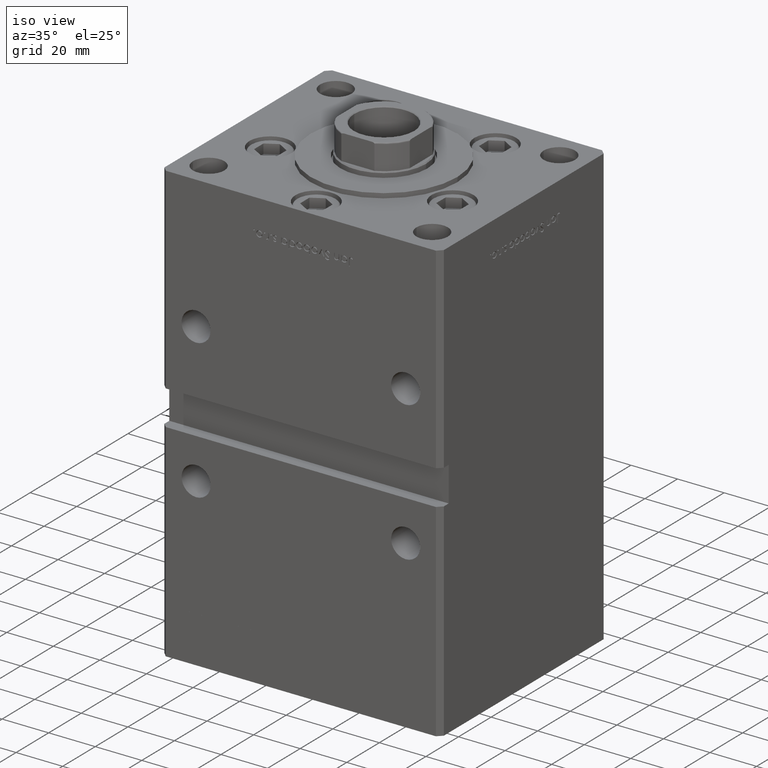
[diagram: clean part render]
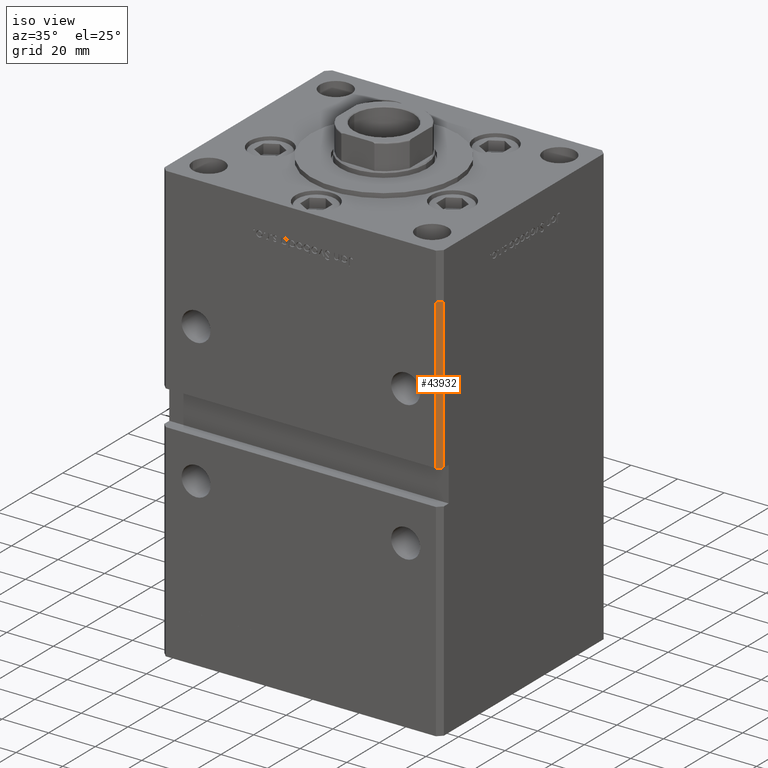
[diagram: same view with one face highlighted and labeled with its STEP entity id]
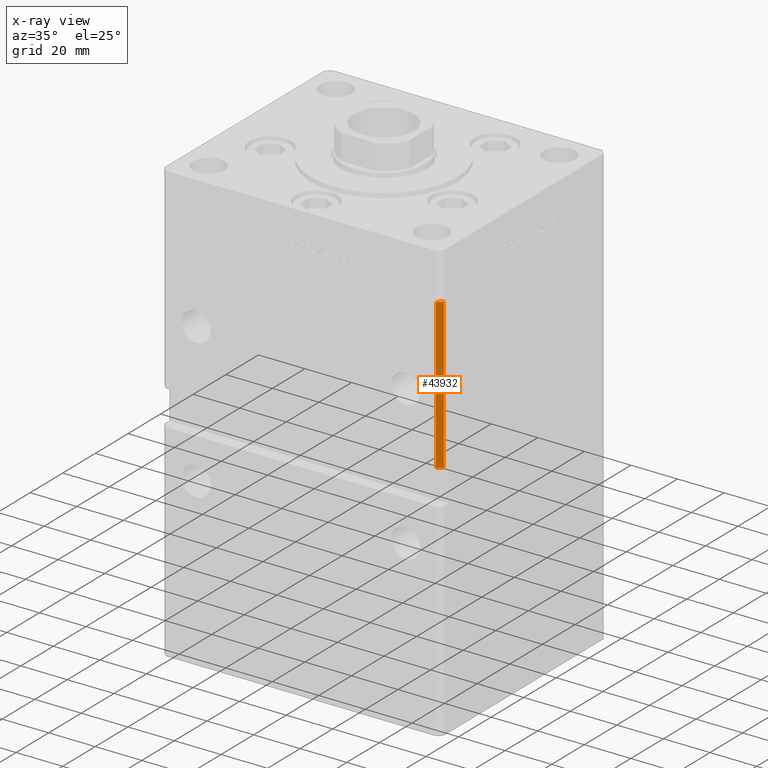
[diagram: x-ray of the same camera — body ghosted, the highlighted face saturated]
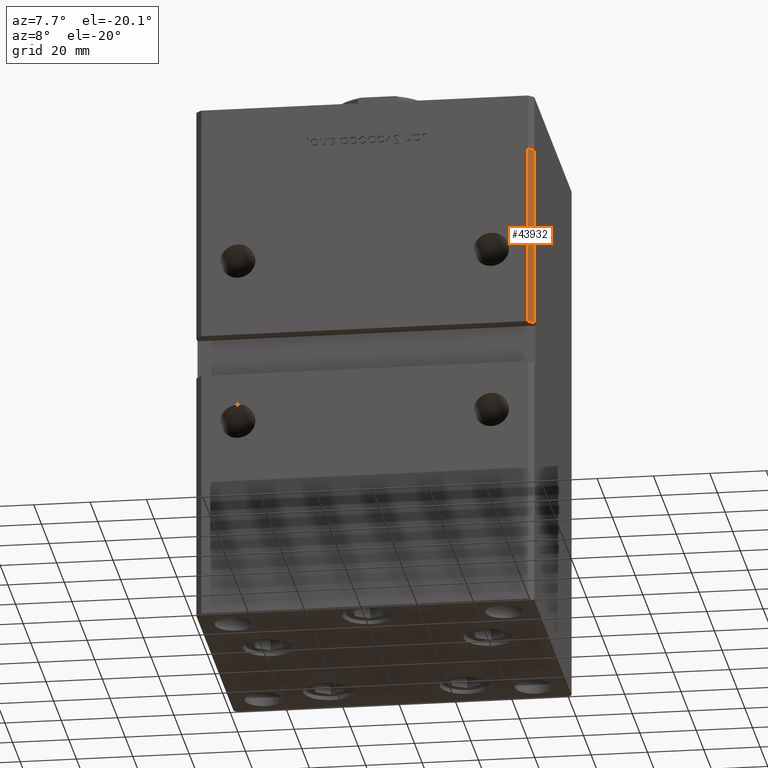
[diagram: same view with one face highlighted and labeled with its STEP entity id]
A machine part, iso view. The second image highlights one B-rep face of the part: STEP entity #43932.
The next image is the same camera in x-ray: the body ghosted, the highlighted face saturated — about 0% of this face is hidden behind the body in this view.
A second angle (auxiliary view) of the same face is appended — the face is thin or edge-on in the first view.
In plain terms, the highlighted planar face has unit normal (0.7071, -0.7071, 0).
Its self-contained STEP definition (entity closure, byte-faithful):
#1197 = VERTEX_POINT ( 'NONE', #45451 ) ;
#1251 = LINE ( 'NONE', #25429, #38766 ) ;
#3214 = PLANE ( 'NONE',  #3962 ) ;
#3518 = LINE ( 'NONE', #44570, #21452 ) ;
#3962 = AXIS2_PLACEMENT_3D ( 'NONE', #15033, #47774, #10989 ) ;
#4739 = CARTESIAN_POINT ( 'NONE',  ( 57.99999999999997868, -50.99999999999999289, 148.5000000000000000 ) ) ;
#6354 = CARTESIAN_POINT ( 'NONE',  ( 59.99999999999998579, -48.99999999999998579, 148.5000000000000000 ) ) ;
#7215 = EDGE_CURVE ( 'NONE', #29153, #34655, #3518, .T. ) ;
#8338 = EDGE_CURVE ( 'NONE', #41631, #1197, #36875, .T. ) ;
#9726 = ORIENTED_EDGE ( 'NONE', *, *, #7215, .T. ) ;
#10157 = CARTESIAN_POINT ( 'NONE',  ( 57.99999999999997868, -50.99999999999999289, 83.99999999999998579 ) ) ;
#10989 = DIRECTION ( 'NONE',  ( 0.7071067811865474617, 0.7071067811865474617, 0.000000000000000000 ) ) ;
#12030 = CARTESIAN_POINT ( 'NONE',  ( 59.99999999999998579, -48.99999999999998579, 83.99999999999998579 ) ) ;
#15033 = CARTESIAN_POINT ( 'NONE',  ( 59.99999999999998579, -48.99999999999998579, 148.5000000000000000 ) ) ;
#16206 = DIRECTION ( 'NONE',  ( -0.000000000000000000, -0.000000000000000000, -1.000000000000000000 ) ) ;
#16282 = VECTOR ( 'NONE', #16206, 1000.000000000000000 ) ;
#17599 = DIRECTION ( 'NONE',  ( -0.7071067811865474617, -0.7071067811865474617, 0.000000000000000000 ) ) ;
#19074 = ORIENTED_EDGE ( 'NONE', *, *, #30125, .F. ) ;
#21452 = VECTOR ( 'NONE', #32493, 1000.000000000000000 ) ;
#25429 = CARTESIAN_POINT ( 'NONE',  ( 59.99999999999998579, -48.99999999999998579, 148.5000000000000000 ) ) ;
#28338 = EDGE_LOOP ( 'NONE', ( #19074, #47404, #50351, #9726 ) ) ;
#28937 = DIRECTION ( 'NONE',  ( -0.7071067811865474617, -0.7071067811865474617, 0.000000000000000000 ) ) ;
#29153 = VERTEX_POINT ( 'NONE', #4739 ) ;
#29998 = VECTOR ( 'NONE', #28937, 1000.000000000000114 ) ;
#30125 = EDGE_CURVE ( 'NONE', #1197, #34655, #48550, .T. ) ;
#32493 = DIRECTION ( 'NONE',  ( -0.000000000000000000, -0.000000000000000000, -1.000000000000000000 ) ) ;
#34655 = VERTEX_POINT ( 'NONE', #10157 ) ;
#36875 = LINE ( 'NONE', #44938, #16282 ) ;
#38766 = VECTOR ( 'NONE', #17599, 1000.000000000000114 ) ;
#39993 = FACE_OUTER_BOUND ( 'NONE', #28338, .T. ) ;
#41631 = VERTEX_POINT ( 'NONE', #6354 ) ;
#43932 = ADVANCED_FACE ( 'NONE', ( #39993 ), #3214, .T. ) ;
#44570 = CARTESIAN_POINT ( 'NONE',  ( 57.99999999999997868, -50.99999999999999289, 148.5000000000000000 ) ) ;
#44938 = CARTESIAN_POINT ( 'NONE',  ( 59.99999999999998579, -48.99999999999998579, 148.5000000000000000 ) ) ;
#45451 = CARTESIAN_POINT ( 'NONE',  ( 59.99999999999998579, -48.99999999999998579, 83.99999999999998579 ) ) ;
#47404 = ORIENTED_EDGE ( 'NONE', *, *, #8338, .F. ) ;
#47774 = DIRECTION ( 'NONE',  ( 0.7071067811865475727, -0.7071067811865475727, 0.000000000000000000 ) ) ;
#48550 = LINE ( 'NONE', #12030, #29998 ) ;
#49474 = EDGE_CURVE ( 'NONE', #41631, #29153, #1251, .T. ) ;
#50351 = ORIENTED_EDGE ( 'NONE', *, *, #49474, .T. ) ;